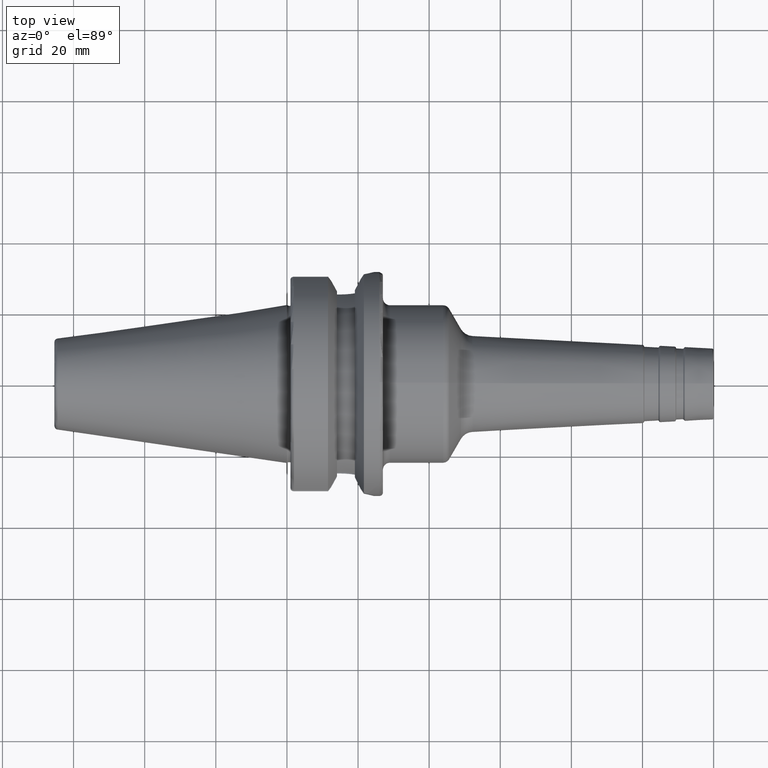
[diagram: clean part render]
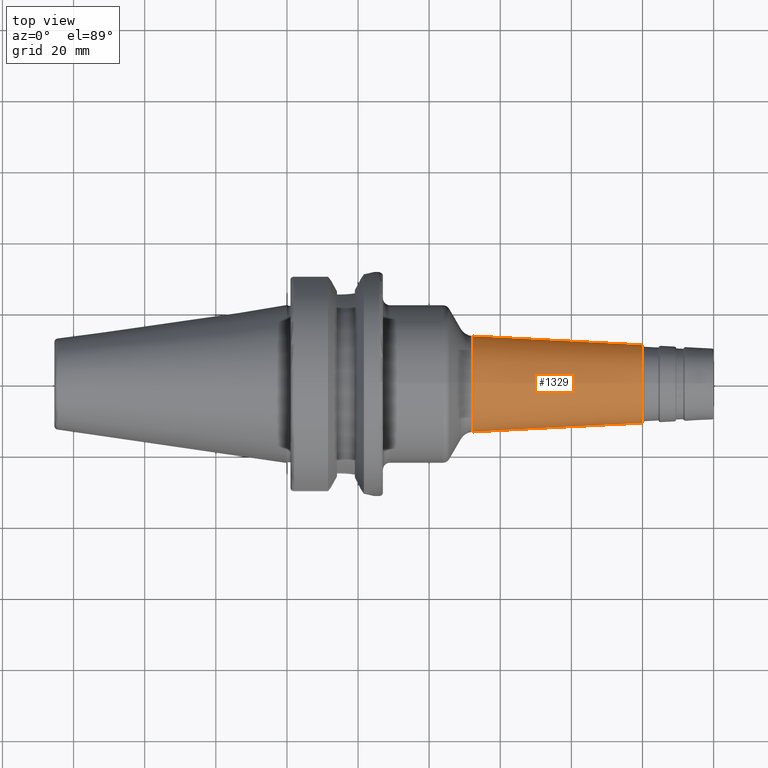
[diagram: same view with one face highlighted and labeled with its STEP entity id]
A machine part, top view. The second image highlights one B-rep face of the part: STEP entity #1329.
In plain terms, the highlighted conical surface has half-angle 3 deg.
Its self-contained STEP definition (entity closure, byte-faithful):
#63=CONICAL_SURFACE('',#1464,12.351721437991,0.0523598775598297);
#140=FACE_OUTER_BOUND('',#228,.T.);
#228=EDGE_LOOP('',(#942,#943,#944,#945));
#313=LINE('',#2124,#386);
#386=VECTOR('',#1702,12.351721437991);
#475=CIRCLE('',#1463,11.0469847975392);
#476=CIRCLE('',#1465,13.5548801268603);
#569=VERTEX_POINT('',#2119);
#570=VERTEX_POINT('',#2123);
#709=EDGE_CURVE('',#569,#569,#475,.T.);
#710=EDGE_CURVE('',#569,#570,#313,.T.);
#711=EDGE_CURVE('',#570,#570,#476,.T.);
#942=ORIENTED_EDGE('',*,*,#709,.F.);
#943=ORIENTED_EDGE('',*,*,#710,.T.);
#944=ORIENTED_EDGE('',*,*,#711,.F.);
#945=ORIENTED_EDGE('',*,*,#710,.F.);
#1329=ADVANCED_FACE('',(#140),#63,.T.);
#1463=AXIS2_PLACEMENT_3D('',#2121,#1698,#1699);
#1464=AXIS2_PLACEMENT_3D('',#2122,#1700,#1701);
#1465=AXIS2_PLACEMENT_3D('',#2125,#1703,#1704);
#1698=DIRECTION('center_axis',(1.,0.,0.));
#1699=DIRECTION('ref_axis',(0.,0.,1.));
#1700=DIRECTION('center_axis',(-1.,0.,0.));
#1701=DIRECTION('ref_axis',(0.,0.,-1.));
#1702=DIRECTION('',(-0.998629534754574,-6.40930612932369E-18,0.0523359562429437));
#1703=DIRECTION('center_axis',(-1.,0.,0.));
#1704=DIRECTION('ref_axis',(0.,0.,1.));
#2119=CARTESIAN_POINT('',(100.022339968181,-1.35286545725359E-15,11.0469847975392));
#2121=CARTESIAN_POINT('Origin',(100.022339968181,-1.35286545725359E-15,
0.));
#2122=CARTESIAN_POINT('Origin',(75.1264817902328,0.,0.));
#2123=CARTESIAN_POINT('',(52.1688463908891,-1.65999405601856E-15,13.5548801268603));
#2124=CARTESIAN_POINT('',(75.1264817902328,-1.51264961229954E-15,12.351721437991));
#2125=CARTESIAN_POINT('Origin',(52.1688463908891,-1.65999405601856E-15,
0.));